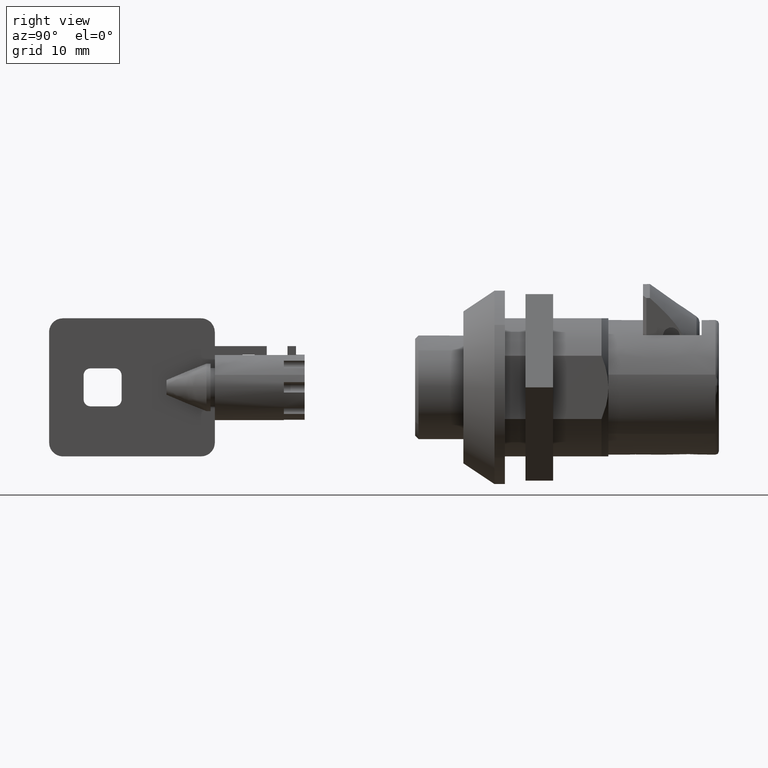
[diagram: clean part render]
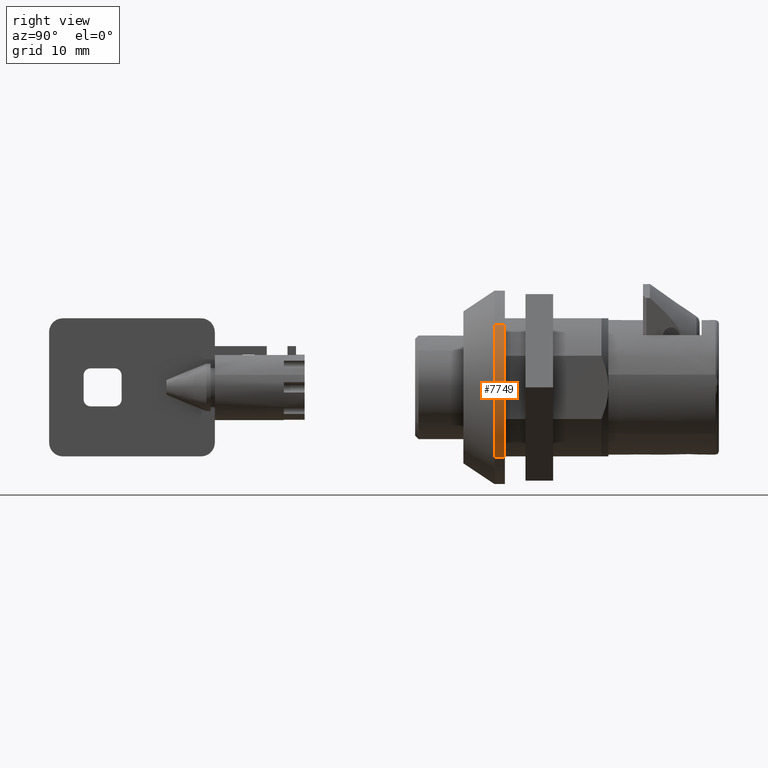
[diagram: same view with one face highlighted and labeled with its STEP entity id]
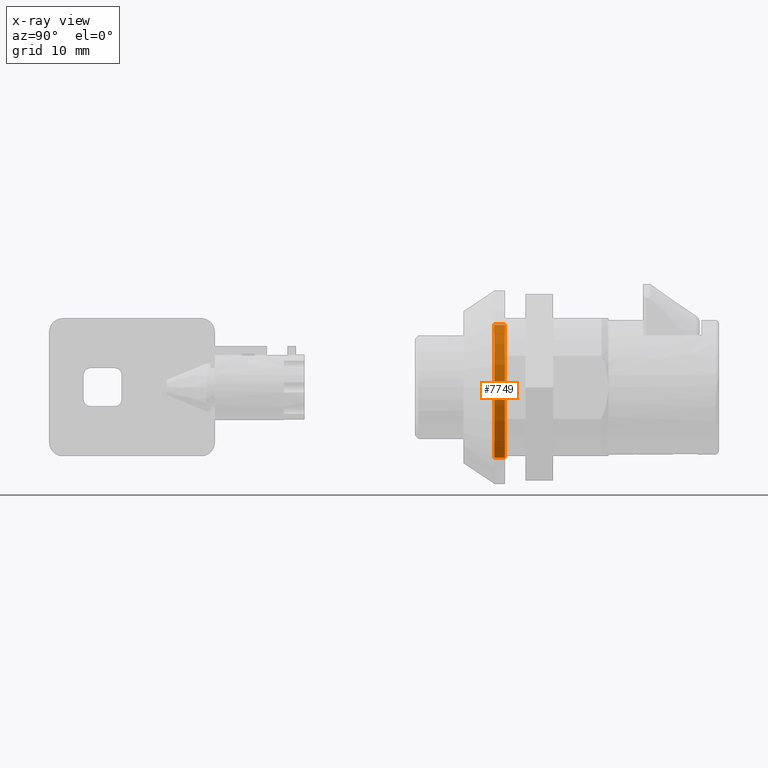
[diagram: x-ray of the same camera — body ghosted, the highlighted face saturated]
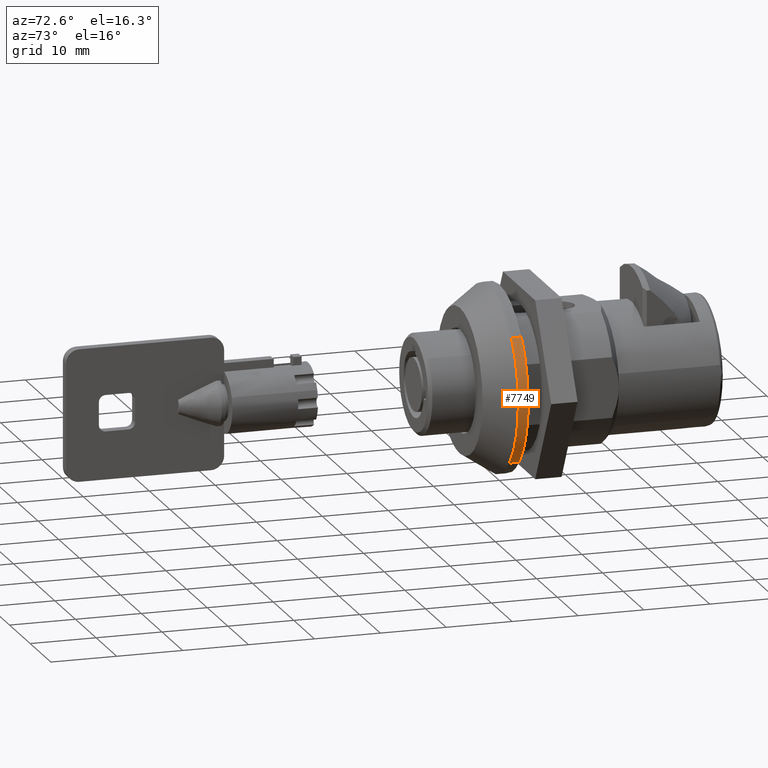
[diagram: same view with one face highlighted and labeled with its STEP entity id]
A machine part, right view. The second image highlights one B-rep face of the part: STEP entity #7749.
The next image is the same camera in x-ray: the body ghosted, the highlighted face saturated — about 0% of this face is hidden behind the body in this view.
A second angle (auxiliary view) of the same face is appended — the face is thin or edge-on in the first view.
In plain terms, the highlighted face is a freeform B-spline surface patch.
Its self-contained STEP definition (entity closure, byte-faithful):
#7480=CARTESIAN_POINT('',(-1.499999999952148,-9.636963676997755,-10.155240496029659));
#7481=VERTEX_POINT('',#7480);
#7492=CARTESIAN_POINT('',(-1.499999999999942,-13.999999999999661,0.000003083658128));
#7493=VERTEX_POINT('',#7492);
#7494=CARTESIAN_POINT('',(-1.499999999952148,-9.636963676997755,-10.155240496029659));
#7495=CARTESIAN_POINT('',(-1.499999999955023,-10.280912054493680,-9.544274075636766));
#7496=CARTESIAN_POINT('',(-1.499999999961565,-11.491066371485539,-8.154469928262472));
#7497=CARTESIAN_POINT('',(-1.499999999973472,-12.939314387392891,-5.625051381513080));
#7498=CARTESIAN_POINT('',(-1.499999999986567,-13.813731721007031,-2.840494726875465));
#7499=CARTESIAN_POINT('',(-1.499999999995770,-14.000089169985660,-0.887661359643825));
#7500=CARTESIAN_POINT('',(-1.499999999999942,-13.999999999999661,0.000003083658128));
#7501=B_SPLINE_CURVE_WITH_KNOTS('',3,(#7494,#7495,#7496,#7497,#7498,#7499,#7500),.UNSPECIFIED.,.F.,.U.,(4,1,1,1,4),(0.000000089139004,2.663006453617781,5.503600682402830,8.699165758278751,11.362172122806459),.UNSPECIFIED.);
#7502=EDGE_CURVE('',#7481,#7493,#7501,.T.);
#7504=CARTESIAN_POINT('',(-1.500000000102650,-10.689779691173930,9.040388898723410));
#7505=VERTEX_POINT('',#7504);
#7506=CARTESIAN_POINT('',(-1.499999999999942,-13.999999999999661,0.000003083658128));
#7507=CARTESIAN_POINT('',(-1.500000000010410,-14.000104003698249,0.921377397852030));
#7508=CARTESIAN_POINT('',(-1.500000000031930,-13.812380112789230,2.815257254149008));
#7509=CARTESIAN_POINT('',(-1.500000000067656,-12.834100587949790,5.960451940040372));
#7510=CARTESIAN_POINT('',(-1.500000000090664,-11.582691662700560,7.985432529995689));
#7511=CARTESIAN_POINT('',(-1.500000000102650,-10.689779691173930,9.040388898723410));
#7512=B_SPLINE_CURVE_WITH_KNOTS('',3,(#7506,#7507,#7508,#7509,#7510,#7511),.UNSPECIFIED.,.F.,.U.,(4,1,1,4),(0.000000063652545,2.764122326831639,5.681793047115939,9.827972134617518),.UNSPECIFIED.);
#7513=EDGE_CURVE('',#7493,#7505,#7512,.T.);
#7633=CARTESIAN_POINT('',(-5.688343E-014,-10.689779689807620,9.040388900338996));
#7634=VERTEX_POINT('',#7633);
#7635=CARTESIAN_POINT('',(-5.688343E-014,-10.689779689807620,9.040388900338996));
#7636=CARTESIAN_POINT('',(-1.500000000102650,-10.689779691173930,9.040388898723410));
#7637=QUASI_UNIFORM_CURVE('',1,(#7635,#7636),.UNSPECIFIED.,.F.,.U.);
#7638=EDGE_CURVE('',#7634,#7505,#7637,.T.);
#7683=CARTESIAN_POINT('',(-5.688158E-014,-9.636963675224097,-10.155240497712800));
#7684=VERTEX_POINT('',#7683);
#7695=CARTESIAN_POINT('',(-5.688158E-014,-9.636963675224097,-10.155240497712800));
#7696=CARTESIAN_POINT('',(-1.499999999952148,-9.636963676997755,-10.155240496029659));
#7697=QUASI_UNIFORM_CURVE('',1,(#7695,#7696),.UNSPECIFIED.,.F.,.U.);
#7698=EDGE_CURVE('',#7684,#7481,#7697,.T.);
#7708=CARTESIAN_POINT('',(0.037499999999940,-9.636964059712552,-10.155241194172021));
#7709=CARTESIAN_POINT('',(0.037499999999940,-19.227101014450977,-1.054541034182322));
#7710=CARTESIAN_POINT('',(0.037499999999940,-10.689779001166512,9.040388537348354));
#7711=CARTESIAN_POINT('',(-1.538437499999939,-9.636964059712552,-10.155241194172021));
#7712=CARTESIAN_POINT('',(-1.538437499999938,-19.227101014450977,-1.054541034182322));
#7713=CARTESIAN_POINT('',(-1.538437499999940,-10.689779001166512,9.040388537348354));
#7721=(BOUNDED_SURFACE()B_SPLINE_SURFACE(2,1,((#7708,#7711),(#7709,#7712),(#7710,#7713)),.UNSPECIFIED.,.F.,.F.,.U.)B_SPLINE_SURFACE_WITH_KNOTS((3,3),(2,2),(0.0,22.262009821923058),(0.0,1.0),.UNSPECIFIED.)GEOMETRIC_REPRESENTATION_ITEM()RATIONAL_B_SPLINE_SURFACE(((1.0,1.0),(0.718822509939086,0.718822509939086),(0.977505800795127,0.977505800795127)))REPRESENTATION_ITEM('')SURFACE());
#7722=ORIENTED_EDGE('',*,*,#7513,.F.);
#7723=ORIENTED_EDGE('',*,*,#7502,.F.);
#7724=ORIENTED_EDGE('',*,*,#7698,.F.);
#7725=CARTESIAN_POINT('',(-5.684342E-014,-13.999999999999661,0.000003083658128));
#7726=VERTEX_POINT('',#7725);
#7727=CARTESIAN_POINT('',(-5.688158E-014,-9.636963675224097,-10.155240497712800));
#7728=CARTESIAN_POINT('',(-5.687898E-014,-10.366796043993061,-9.462833280395618));
#7729=CARTESIAN_POINT('',(-5.687301E-014,-11.714826299569189,-7.874465357331077));
#7730=CARTESIAN_POINT('',(-5.686369E-014,-13.012226251080071,-5.393782161839853));
#7731=CARTESIAN_POINT('',(-5.685365E-014,-13.814181706757530,-2.722100508709000));
#7732=CARTESIAN_POINT('',(-5.684720E-014,-14.000156542658400,-1.006028539411246));
#7733=CARTESIAN_POINT('',(-5.684342E-014,-13.999999999999661,0.000003083658128));
#7734=B_SPLINE_CURVE_WITH_KNOTS('',3,(#7727,#7728,#7729,#7730,#7731,#7732,#7733),.UNSPECIFIED.,.F.,.U.,(4,1,1,1,4),(0.000000089138595,3.018079742094251,6.213675047474673,8.344092472247148,11.362172125251680),.UNSPECIFIED.);
#7735=EDGE_CURVE('',#7684,#7726,#7734,.T.);
#7736=ORIENTED_EDGE('',*,*,#7735,.T.);
#7737=CARTESIAN_POINT('',(-5.684342E-014,-13.999999999999661,0.000003083658128));
#7738=CARTESIAN_POINT('',(-5.684840E-014,-14.000299804537059,1.126151382937331));
#7739=CARTESIAN_POINT('',(-5.685678E-014,-13.770147129602730,3.019911245579305));
#7740=CARTESIAN_POINT('',(-5.687058E-014,-12.725116453923190,6.136497068304295));
#7741=CARTESIAN_POINT('',(-5.687876E-014,-11.582782254447499,7.985463170540851));
#7742=CARTESIAN_POINT('',(-5.688343E-014,-10.689779689807620,9.040388900338996));
#7743=B_SPLINE_CURVE_WITH_KNOTS('',3,(#7737,#7738,#7739,#7740,#7741,#7742),.UNSPECIFIED.,.F.,.U.,(4,1,1,4),(0.000000063653456,3.378369934997754,5.681793048339541,9.827972136733415),.UNSPECIFIED.);
#7744=EDGE_CURVE('',#7726,#7634,#7743,.T.);
#7745=ORIENTED_EDGE('',*,*,#7744,.T.);
#7746=ORIENTED_EDGE('',*,*,#7638,.T.);
#7747=EDGE_LOOP('',(#7722,#7723,#7724,#7736,#7745,#7746));
#7748=FACE_OUTER_BOUND('',#7747,.T.);
#7749=ADVANCED_FACE('',(#7748),#7721,.T.);